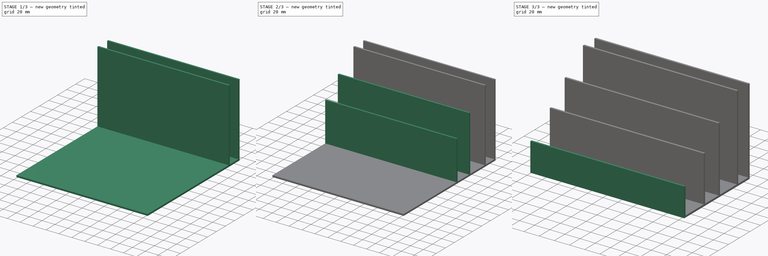
[diagram: build sequence overview — one tinted view per stage of 3, left to right]
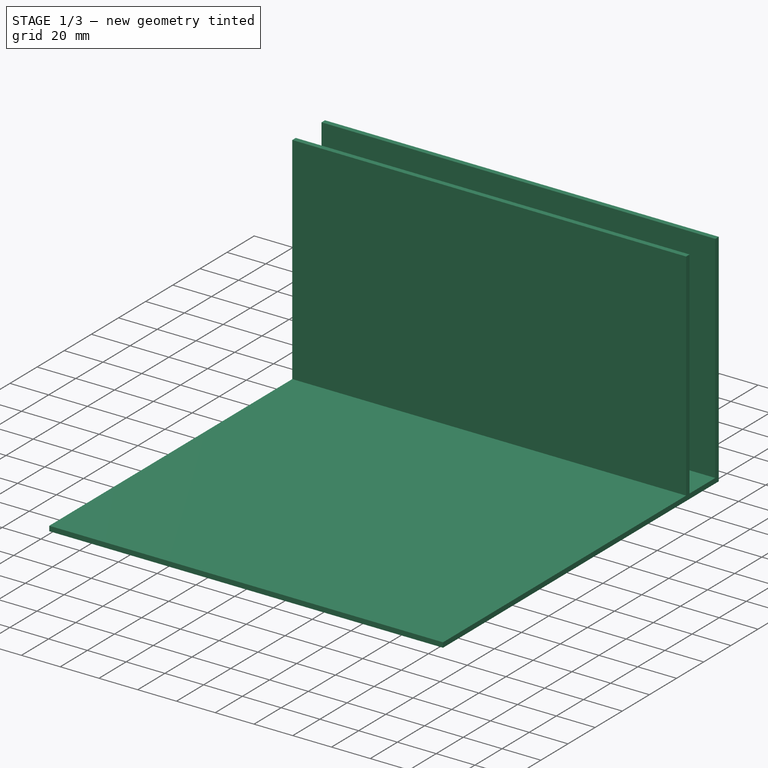
[diagram: stage 1 of 3 — iso view after this stage's code; geometry added in this stage tinted green]
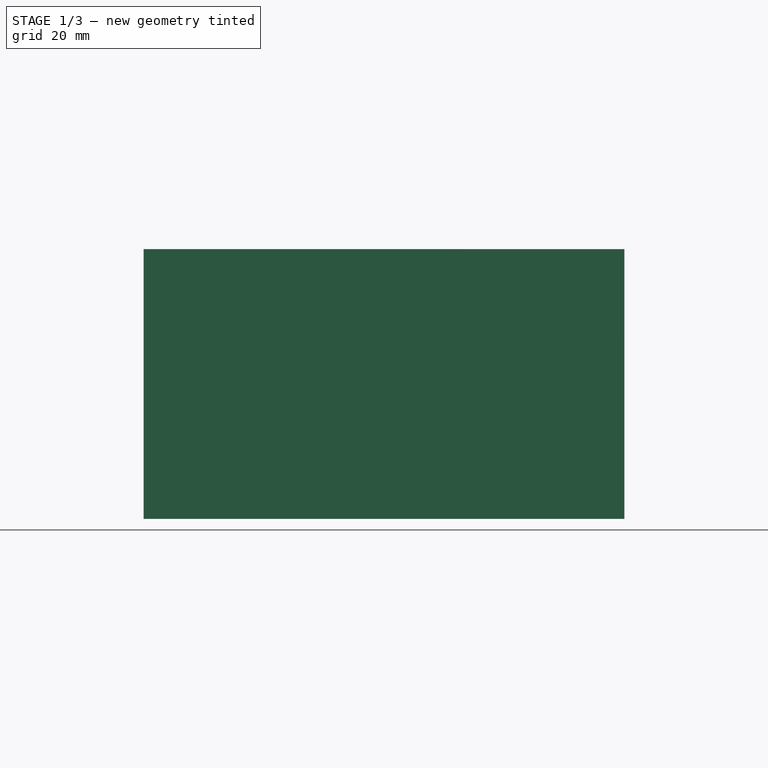
[diagram: stage 1 of 3 — front view after this stage's code; geometry added in this stage tinted green]
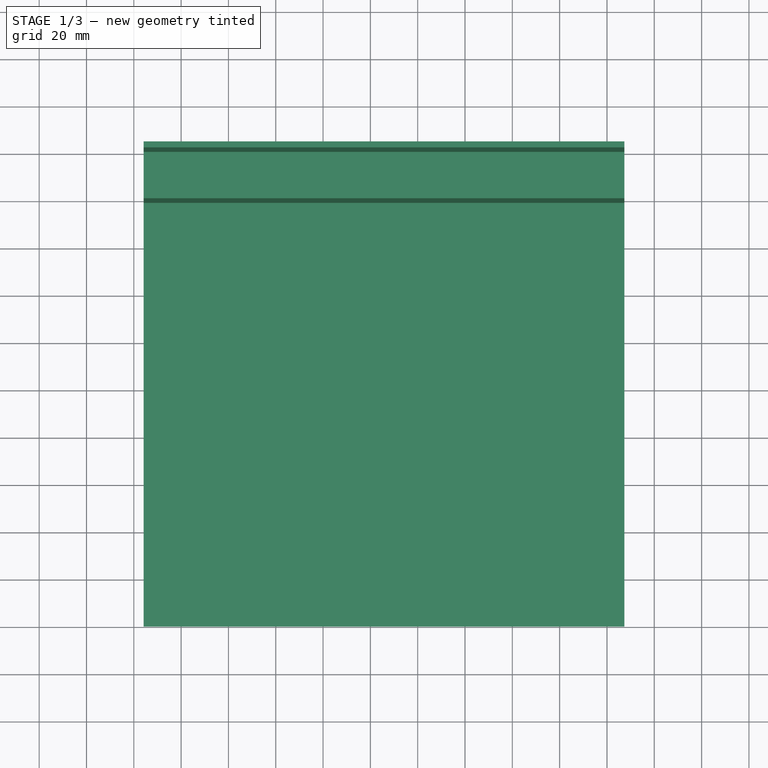
[diagram: stage 1 of 3 — top view after this stage's code; geometry added in this stage tinted green]
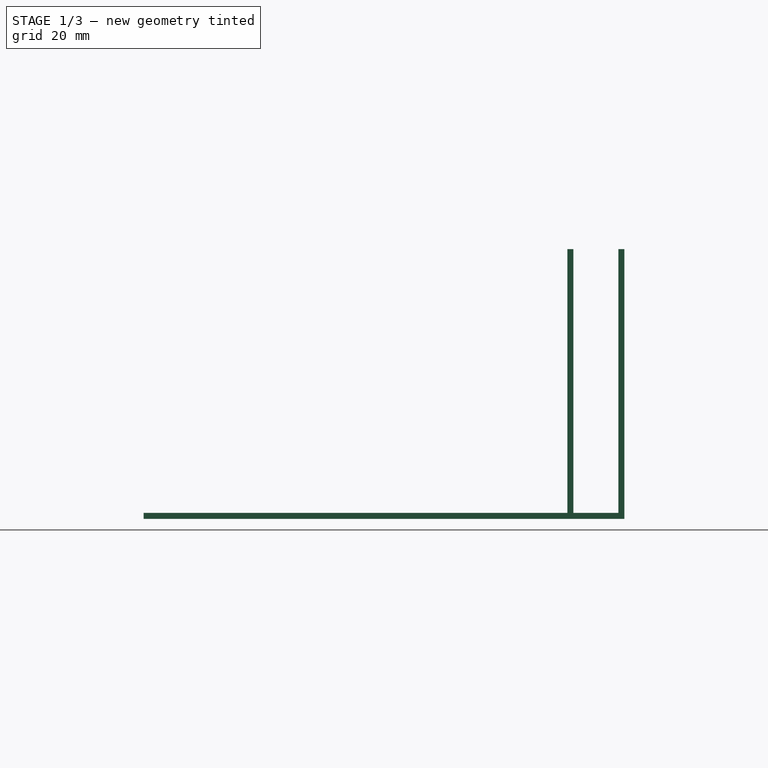
[diagram: stage 1 of 3 — right view after this stage's code; geometry added in this stage tinted green]
FCSTD DOCUMENT  (FreeCAD 1.2R20260415 (Git shallow))
Label: Organizer
License: All rights reserved
objects: Sketcher::SketchObject×6, PartDesign::Pad×5, App::FeaturePython×4, App::Point×1, PartDesign::Pocket×1, PartDesign::Body×1
note: 31 computed .brp shape members not serialized (recipe doc carries the construction recipe); baked Part::Feature solids carry a one-line shape summary decoded from their .brp

FEATURE [App::Point] Origin001
  Role = Origin
FEATURE [Sketcher::SketchObject] Sketch
  ArcFitTolerance = 1e-06
  AttachmentSupport = -> [Origin]
  ExternalTypes = [0]
  FullyConstrained = false
  MakeInternals = false
  MapMode = 5
  sketch-geometry (4):
    g0: LineSegment StartX=67.3523 StartY=123.444 StartZ=0 EndX=-135.848 EndY=123.444 EndZ=0
    g1: LineSegment StartX=-135.848 StartY=123.444 StartZ=0 EndX=-135.848 EndY=-79.756 EndZ=0
    g2: LineSegment StartX=-135.848 StartY=-79.756 StartZ=0 EndX=67.3523 EndY=-79.756 EndZ=0
    g3: LineSegment StartX=67.3523 StartY=-79.756 StartZ=0 EndX=67.3523 EndY=123.444 EndZ=0
  constraints (11):
    c: Coincident(g0,g1)
    c: Coincident(g0,g3)
    c: Coincident(g1,g2)
    c: Coincident(g2,g3)
    c: DistanceX(g0,g0) = 203.2
    c: DistanceY(g3,g3) = 203.2
    c: Parallel(g0,g-1)
    c: Parallel(g-1,g2)
    c: Parallel(g3,g-2)
    c: Parallel(g1,g-2)
    c: Distance(g-1,g0) = 123.444
FEATURE [PartDesign::Pad] Pad  label="Bottom"
  Direction = (0,0,1)
  Length = 2.54
  Length2 = 10
  Profile = -> Sketch
  ReferenceAxis = -> Sketch [N_Axis]
  Refine = true
  SideType = 0
  Suppressed = false
  Type = 0
  Type2 = 0
FEATURE [Sketcher::SketchObject] Sketch001
  ArcFitTolerance = 1e-06
  AttachmentSupport = -> [Pad]
  ExternalGeometry = -> [Pad]
  ExternalTypes = [0,0,0]
  FullyConstrained = false
  MakeInternals = false
  MapMode = 5
  Placement = pos=(0,0,2.54) rot=(0,0,1;0rad)
  sketch-geometry (8):
    g0: LineSegment StartX=-135.848 StartY=123.444 StartZ=0 EndX=-135.848 EndY=120.904 EndZ=0
    g1: LineSegment StartX=-135.848 StartY=120.904 StartZ=0 EndX=67.3523 EndY=120.904 EndZ=0
    g2: LineSegment StartX=67.3523 StartY=120.904 StartZ=0 EndX=67.3523 EndY=123.444 EndZ=0
    g3: LineSegment StartX=67.3523 StartY=123.444 StartZ=0 EndX=-135.848 EndY=123.444 EndZ=0
    g4: LineSegment StartX=-135.848 StartY=101.895 StartZ=0 EndX=-135.848 EndY=99.3548 EndZ=0
    g5: LineSegment StartX=-135.848 StartY=99.3548 StartZ=0 EndX=67.3523 EndY=99.3548 EndZ=0
    g6: LineSegment StartX=67.3523 StartY=99.3548 StartZ=0 EndX=67.3523 EndY=101.895 EndZ=0
    g7: LineSegment StartX=67.3523 StartY=101.895 StartZ=0 EndX=-135.848 EndY=101.895 EndZ=0
  constraints (21):
    c: Coincident(g0,g1)
    c: Coincident(g1,g2)
    c: Coincident(g2,g3)
    c: Coincident(g3,g0)
    c: Vertical(g0)
    c: Vertical(g2)
    c: Horizontal(g1)
    c: Coincident(g0,g-4)
    c: Coincident(g2,g-4)
    c: DistanceY(g2,g2) = 2.54
    c: Coincident(g4,g5)
    c: Coincident(g5,g6)
    c: Coincident(g6,g7)
    c: Coincident(g7,g4)
    c: Vertical(g4)
    c: Vertical(g6)
    c: Horizontal(g5)
    c: Horizontal(g7)
    c: PointOnObject(g4,g-3)
    c: Equal(g4,g0)
    c: PointOnObject(g6,g-5)
FEATURE [App::FeaturePython] Text  # WARN: FeaturePython — macro-defined, semantics opaque (R4)
  Placement = pos=(127,106.68,0) rot=(0,0,1;0rad)
  Text = Card Board
FEATURE [App::FeaturePython] Text001  label="Text002"  # WARN: FeaturePython — macro-defined, semantics opaque (R4)
  Placement = pos=(127,81.28,0) rot=(0,0,1;0rad)
  Text = Windows Laptop
FEATURE [App::FeaturePython] Text002  label="Text003"  # WARN: FeaturePython — macro-defined, semantics opaque (R4)
  Placement = pos=(127,50.8,0) rot=(0,0,1;0rad)
  Text = Big Keyboard
FEATURE [App::FeaturePython] Text003  label="Text004"  # WARN: FeaturePython — macro-defined, semantics opaque (R4)
  Placement = pos=(127,12.7,0) rot=(0,0,1;0rad)
  Text = Small Keyboard
FEATURE [PartDesign::Pad] Pad001  label="1"
  BaseFeature = -> Pad
  Direction = (0,0,1)
  Length = 111.506
  Length2 = 10
  Profile = -> Sketch001
  ReferenceAxis = -> Sketch001 [N_Axis]
  Refine = true
  SideType = 0
  Suppressed = false
  Type = 0
  Type2 = 0
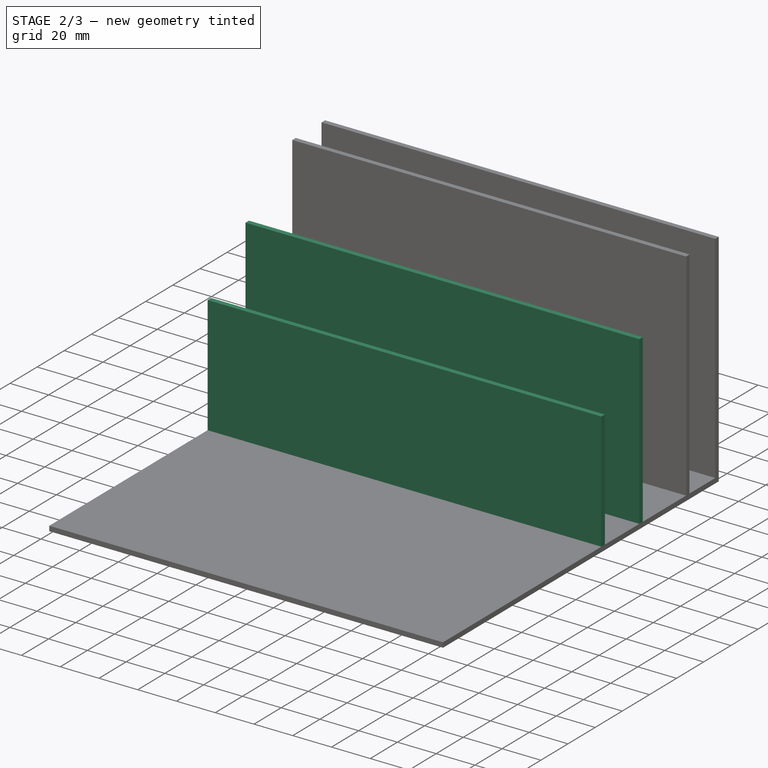
[diagram: stage 2 of 3 — iso view after this stage's code; geometry added in this stage tinted green]
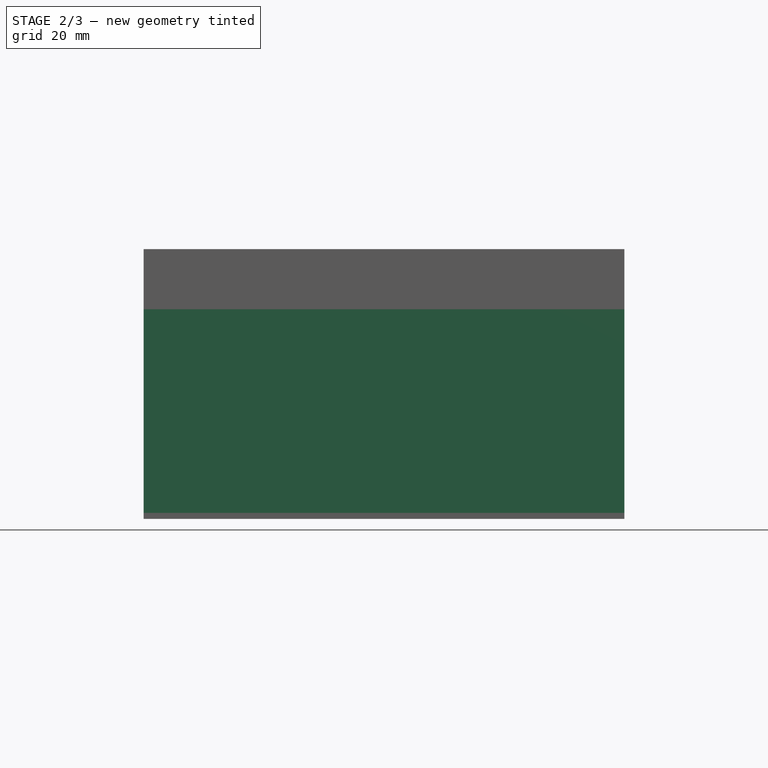
[diagram: stage 2 of 3 — front view after this stage's code; geometry added in this stage tinted green]
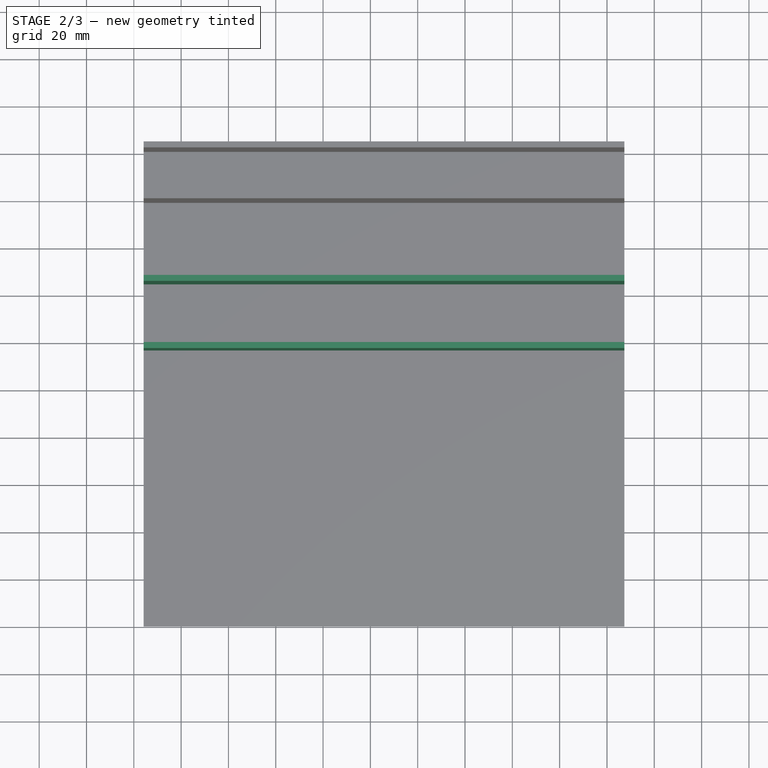
[diagram: stage 2 of 3 — top view after this stage's code; geometry added in this stage tinted green]
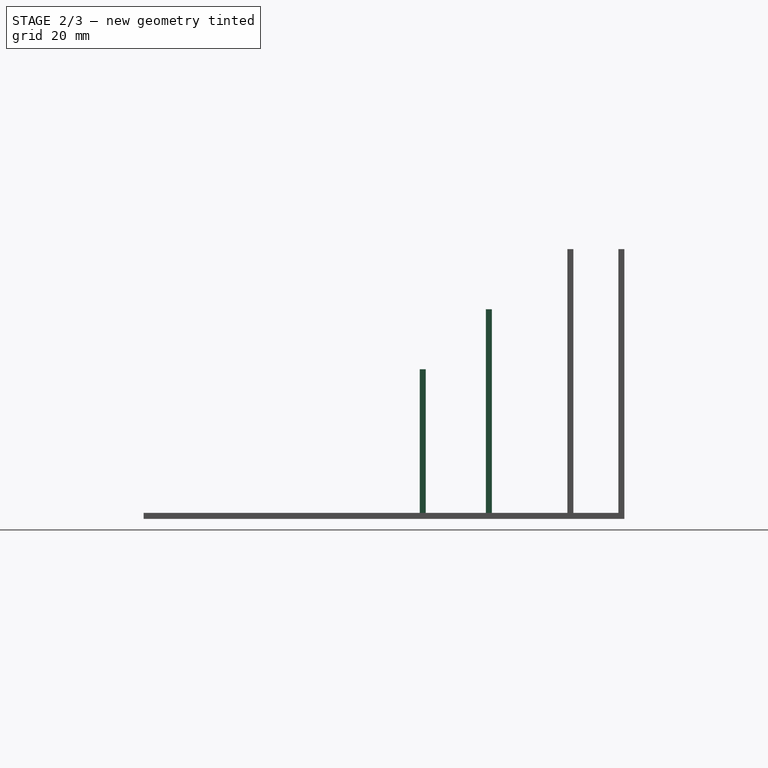
[diagram: stage 2 of 3 — right view after this stage's code; geometry added in this stage tinted green]
FEATURE [Sketcher::SketchObject] Sketch002
  ArcFitTolerance = 1e-06
  AttachmentSupport = -> [Pad001]
  ExternalGeometry = -> [Pad001]
  ExternalTypes = [0,0,0,0]
  FullyConstrained = false
  MakeInternals = false
  MapMode = 5
  Placement = pos=(0,0,2.54) rot=(0,0,1;0rad)
  sketch-geometry (5):
    g0: LineSegment StartX=-135.848 StartY=67.4269 StartZ=0 EndX=-135.848 EndY=64.8869 EndZ=0
    g1: LineSegment StartX=-135.848 StartY=64.8869 StartZ=0 EndX=67.3523 EndY=64.8869 EndZ=0
    g2: LineSegment StartX=67.3523 StartY=64.8869 StartZ=0 EndX=67.3523 EndY=67.4269 EndZ=0
    g3: LineSegment StartX=67.3523 StartY=67.4269 StartZ=0 EndX=-135.848 EndY=67.4269 EndZ=0
    g4: LineSegment [constr] StartX=-135.848 StartY=101.895 StartZ=0 EndX=-135.848 EndY=99.3548 EndZ=0
  constraints (13):
    c: Coincident(g0,g1)
    c: Coincident(g1,g2)
    c: Coincident(g2,g3)
    c: Coincident(g3,g0)
    c: Vertical(g0)
    c: Vertical(g2)
    c: Horizontal(g1)
    c: Horizontal(g3)
    c: Coincident(g4,g-4)
    c: Coincident(g4,g-3)
    c: Equal(g0,g4)
    c: PointOnObject(g0,g-5)
    c: PointOnObject(g2,g-6)
FEATURE [PartDesign::Pad] Pad002  label="2"
  BaseFeature = -> Pad001
  Direction = (0,0,1)
  Length = 86.106
  Length2 = 10
  Profile = -> Sketch002
  ReferenceAxis = -> Sketch002 [N_Axis]
  Refine = true
  SideType = 0
  Suppressed = false
  Type = 0
  Type2 = 0
FEATURE [Sketcher::SketchObject] Sketch003
  ArcFitTolerance = 1e-06
  AttachmentSupport = -> [Pad002]
  ExternalGeometry = -> [Pad002]
  ExternalTypes = [0,0,0,0]
  FullyConstrained = true
  MakeInternals = false
  MapMode = 5
  Placement = pos=(0,0,2.54) rot=(0,0,1;0rad)
  sketch-geometry (5):
    g0: LineSegment [constr] StartX=-135.848 StartY=67.4269 StartZ=0 EndX=-135.848 EndY=64.8869 EndZ=0
    g1: LineSegment StartX=-135.848 StartY=39.4869 StartZ=0 EndX=-135.848 EndY=36.9469 EndZ=0
    g2: LineSegment StartX=-135.848 StartY=36.9469 StartZ=0 EndX=67.3523 EndY=36.9469 EndZ=0
    g3: LineSegment StartX=67.3523 StartY=36.9469 StartZ=0 EndX=67.3523 EndY=39.4869 EndZ=0
    g4: LineSegment StartX=67.3523 StartY=39.4869 StartZ=0 EndX=-135.848 EndY=39.4869 EndZ=0
  constraints (14):
    c: Coincident(g0,g-3)
    c: Coincident(g0,g-4)
    c: Coincident(g1,g2)
    c: Coincident(g2,g3)
    c: Coincident(g3,g4)
    c: Coincident(g4,g1)
    c: Vertical(g1)
    c: Vertical(g3)
    c: Horizontal(g2)
    c: Horizontal(g4)
    c: PointOnObject(g3,g-5)
    c: PointOnObject(g1,g-6)
    c: Equal(g1,g0)
    c: DistanceY(g1,g0) = 25.4
FEATURE [PartDesign::Pad] Pad003  label="3"
  BaseFeature = -> Pad002
  Direction = (0,0,1)
  Length = 60.706
  Length2 = 10
  Profile = -> Sketch003
  ReferenceAxis = -> Sketch003 [N_Axis]
  Refine = true
  SideType = 0
  Suppressed = false
  Type = 0
  Type2 = 0
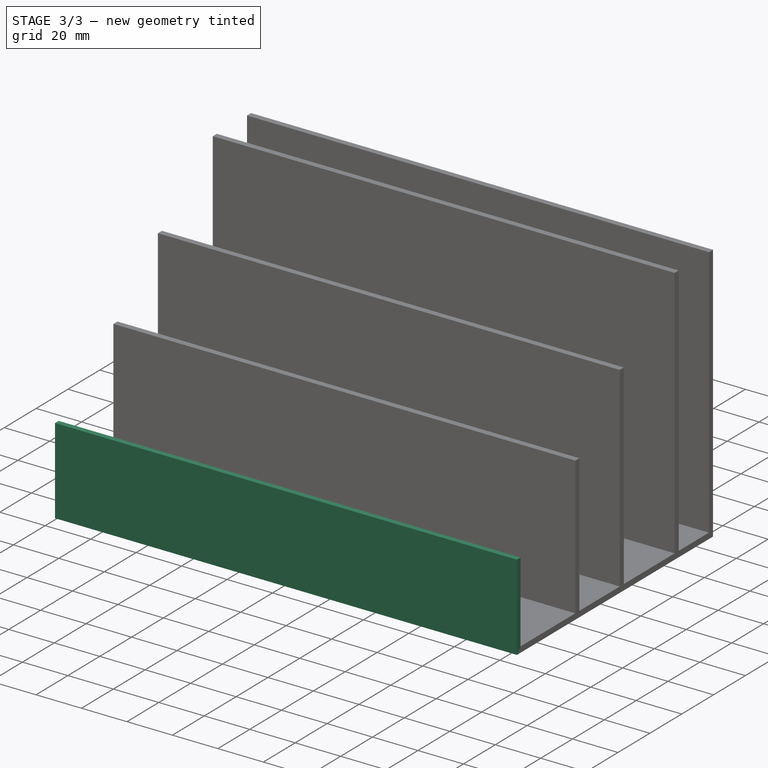
[diagram: stage 3 of 3 — iso view after this stage's code; geometry added in this stage tinted green]
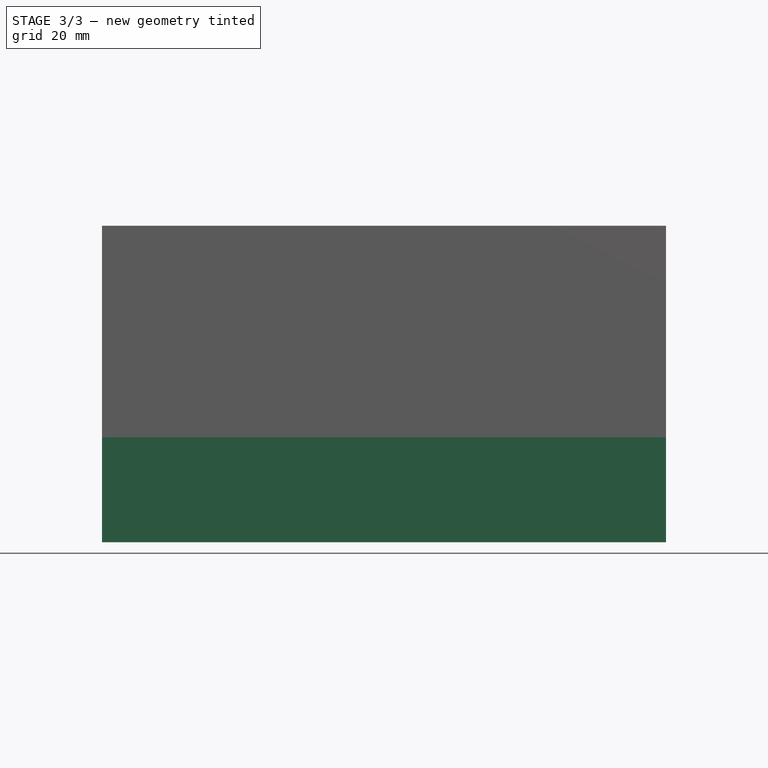
[diagram: stage 3 of 3 — front view after this stage's code; geometry added in this stage tinted green]
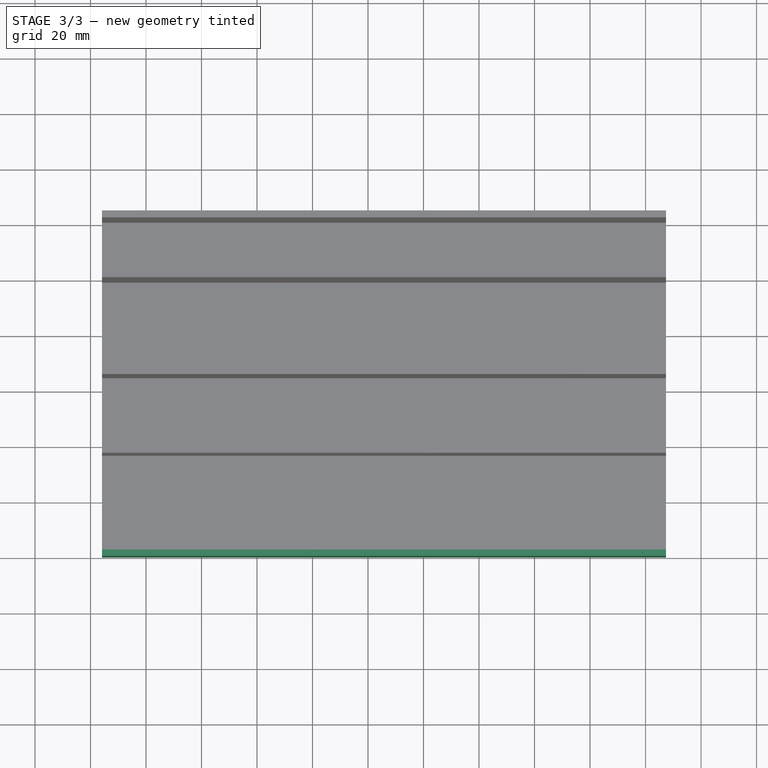
[diagram: stage 3 of 3 — top view after this stage's code; geometry added in this stage tinted green]
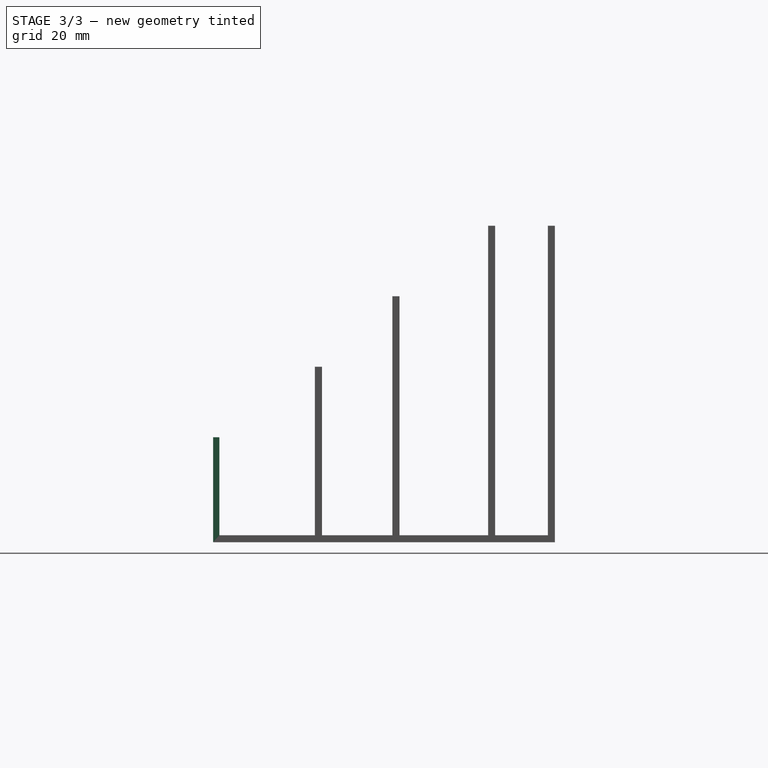
[diagram: stage 3 of 3 — right view after this stage's code; geometry added in this stage tinted green]
FEATURE [Sketcher::SketchObject] Sketch004
  ArcFitTolerance = 1e-06
  AttachmentSupport = -> [Pad003]
  ExternalGeometry = -> [Pad003]
  ExternalTypes = [0,0,0,0]
  FullyConstrained = true
  MakeInternals = false
  MapMode = 5
  Placement = pos=(0,0,2.54) rot=(0,0,1;0rad)
  sketch-geometry (5):
    g0: LineSegment StartX=-135.848 StartY=2.54 StartZ=0 EndX=-135.848 EndY=0 EndZ=0
    g1: LineSegment StartX=-135.848 StartY=0 StartZ=0 EndX=67.3523 EndY=0 EndZ=0
    g2: LineSegment StartX=67.3523 StartY=0 StartZ=0 EndX=67.3523 EndY=2.54 EndZ=0
    g3: LineSegment StartX=67.3523 StartY=2.54 StartZ=0 EndX=-135.848 EndY=2.54 EndZ=0
    g4: LineSegment [constr] StartX=-135.848 StartY=39.4869 StartZ=0 EndX=-135.848 EndY=36.9469 EndZ=0
  constraints (14):
    c: Coincident(g0,g1)
    c: Coincident(g1,g2)
    c: Coincident(g2,g3)
    c: Coincident(g3,g0)
    c: Vertical(g0)
    c: Vertical(g2)
    c: Horizontal(g1)
    c: Horizontal(g3)
    c: PointOnObject(g1,g-1)
    c: PointOnObject(g0,g-6)
    c: PointOnObject(g2,g-4)
    c: Coincident(g4,g-5)
    c: Coincident(g4,g-3)
    c: Equal(g0,g4)
FEATURE [PartDesign::Pad] Pad004  label="4"
  BaseFeature = -> Pad003
  Direction = (0,0,1)
  Length = 35.306
  Length2 = 10
  Profile = -> Sketch004
  ReferenceAxis = -> Sketch004 [N_Axis]
  Refine = true
  SideType = 0
  Suppressed = false
  Type = 0
  Type2 = 0
FEATURE [Sketcher::SketchObject] Sketch007
  ArcFitTolerance = 1e-06
  ExternalTypes = [0]
  FullyConstrained = false
  MakeInternals = false
  MapMode = 5
  Placement = pos=(0,-79.756,0) rot=(1,0,0;1.5708rad)
  sketch-geometry (4):
    g0: LineSegment StartX=88.7029 StartY=0 StartZ=0 EndX=88.7029 EndY=43.5149 EndZ=0
    g1: LineSegment StartX=88.7029 StartY=43.5149 StartZ=0 EndX=-138.335 EndY=43.5149 EndZ=0
    g2: LineSegment StartX=-138.335 StartY=43.5149 StartZ=0 EndX=-138.335 EndY=0 EndZ=0
    g3: LineSegment StartX=-138.335 StartY=0 StartZ=0 EndX=88.7029 EndY=0 EndZ=0
  constraints (9):
    c: Coincident(g0,g1)
    c: Coincident(g1,g2)
    c: Coincident(g2,g3)
    c: Coincident(g3,g0)
    c: Vertical(g0)
    c: Vertical(g2)
    c: Horizontal(g1)
    c: Horizontal(g3)
    c: PointOnObject(g0,g-1)
FEATURE [PartDesign::Pocket] Pocket
  BaseFeature = -> Pad004
  Direction = (0,1,-2e-16)
  Length = 80.01
  Length2 = 5
  Profile = -> Sketch007
  ReferenceAxis = -> Sketch007 [N_Axis]
  Refine = true
  SideType = 0
  Suppressed = false
  Type = 0
  Type2 = 0
FEATURE [PartDesign::Body] Body
  AllowCompound = true
  Group = -> [Sketch,Pad,Sketch001,Pad001,Sketch002,Pad002,Sketch003,Pad003,Sketch004,Pad004,Sketch007,Pocket]
  Origin = -> Origin
  Tip = -> Pocket
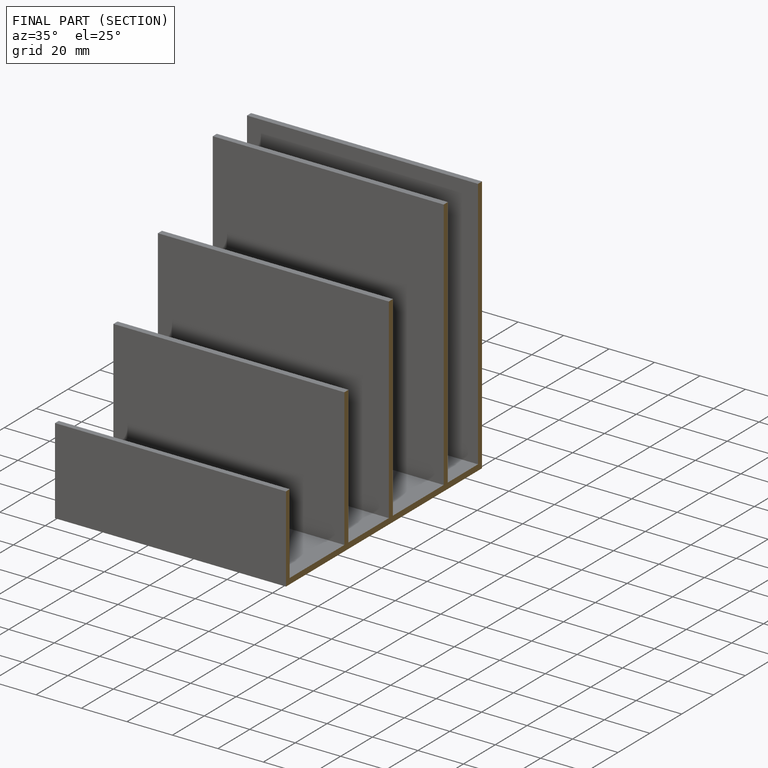
[diagram: finished part — half-section view (interior)]
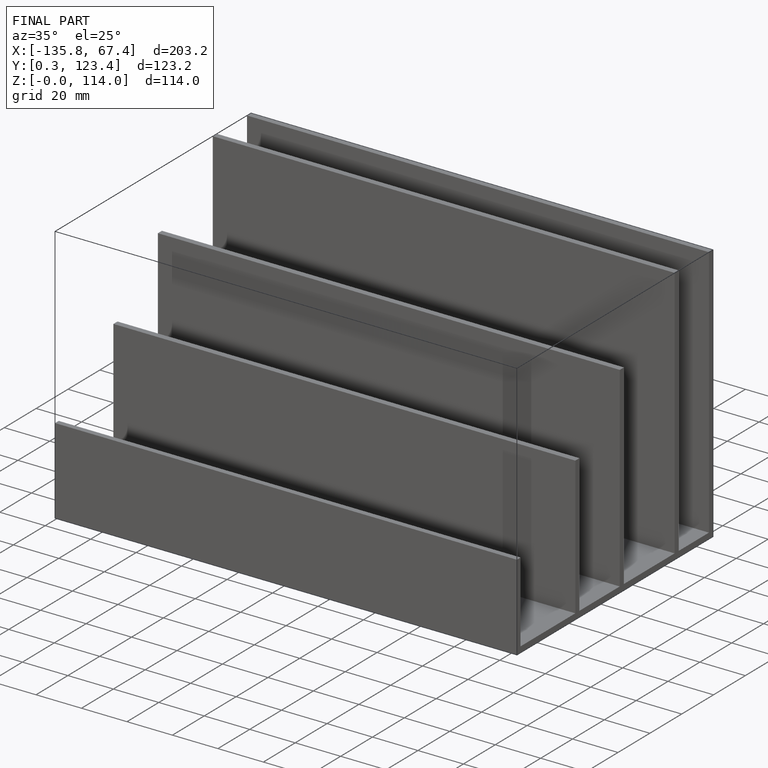
[diagram: finished part — iso view with bounding-box wireframe]
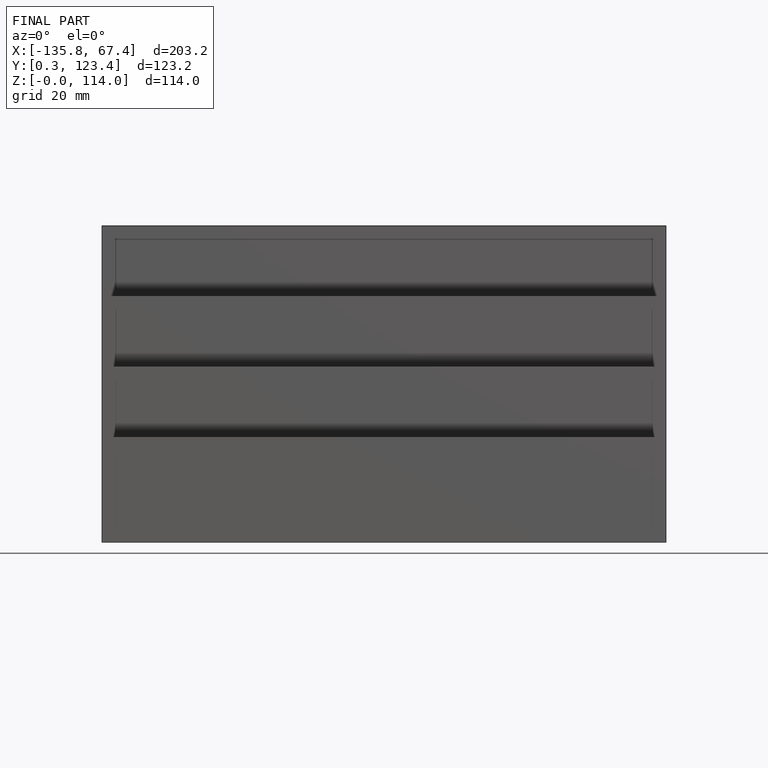
[diagram: finished part — front view with bounding-box wireframe]
